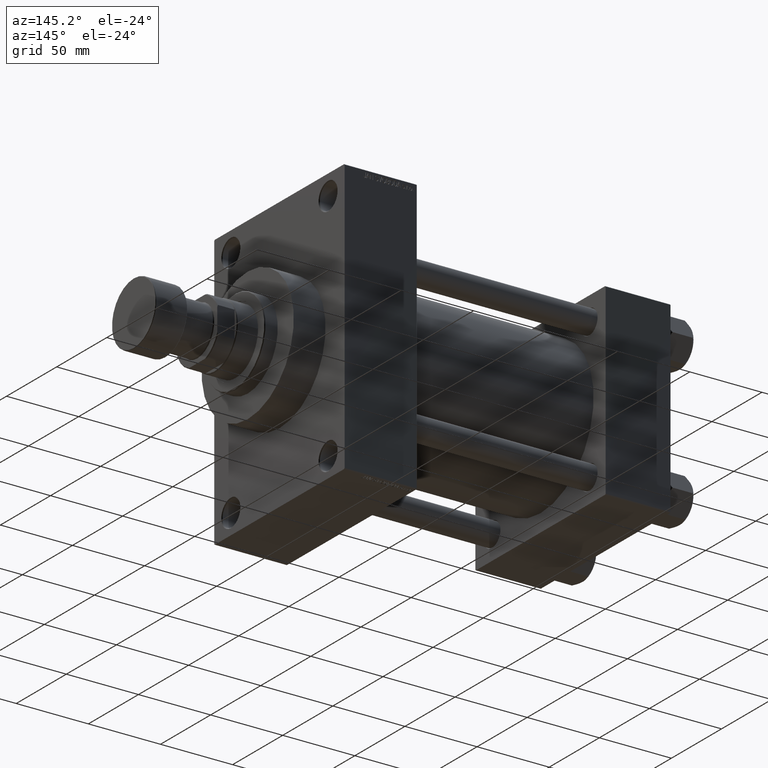
[diagram: clean part render]
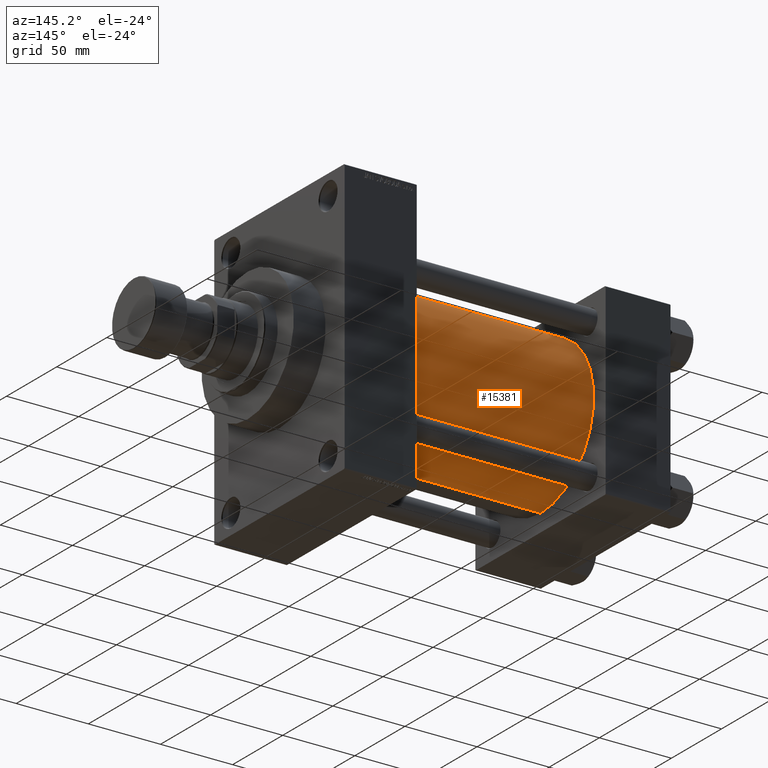
[diagram: same view with one face highlighted and labeled with its STEP entity id]
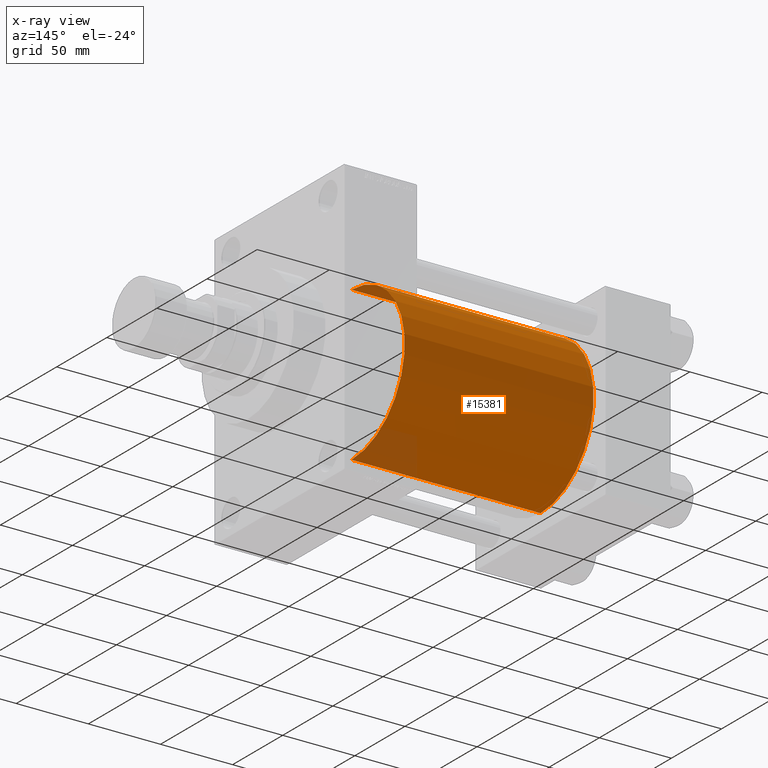
[diagram: x-ray of the same camera — body ghosted, the highlighted face saturated]
A machine part, auxiliary view. The second image highlights one B-rep face of the part: STEP entity #15381.
The next image is the same camera in x-ray: the body ghosted, the highlighted face saturated — about 7% of this face is hidden behind the body in this view.
In plain terms, the highlighted cylindrical surface (partial cylindrical patch) has radius 53 mm, axis along (-1, -0, -0).
Its self-contained STEP definition (entity closure, byte-faithful):
#1446 = DIRECTION ( 'NONE',  ( 0.000000000000000000, 0.000000000000000000, 1.000000000000000000 ) ) ;
#6537 = AXIS2_PLACEMENT_3D ( 'NONE', #23595, #38418, #1446 ) ;
#6697 = LINE ( 'NONE', #21542, #8327 ) ;
#7968 = DIRECTION ( 'NONE',  ( 1.000000000000000000, 0.000000000000000000, 0.000000000000000000 ) ) ;
#8327 = VECTOR ( 'NONE', #36373, 1000.000000000000000 ) ;
#8743 = CYLINDRICAL_SURFACE ( 'NONE', #6537, 53.00000000000000711 ) ;
#9541 = CARTESIAN_POINT ( 'NONE',  ( 44.99999999999998579, -2.602085213965210642E-15, 53.00000000000000711 ) ) ;
#14257 = CARTESIAN_POINT ( 'NONE',  ( 176.0000000000000000, -2.602085213965210642E-15, 53.00000000000000711 ) ) ;
#15381 = ADVANCED_FACE ( 'NONE', ( #43023 ), #8743, .T. ) ;
#15496 = CARTESIAN_POINT ( 'NONE',  ( 176.0000000000000000, -2.602085213965210642E-15, 0.000000000000000000 ) ) ;
#16180 = VECTOR ( 'NONE', #18384, 1000.000000000000000 ) ;
#17437 = ORIENTED_EDGE ( 'NONE', *, *, #22147, .T. ) ;
#18384 = DIRECTION ( 'NONE',  ( -1.000000000000000000, -0.000000000000000000, -0.000000000000000000 ) ) ;
#18782 = CARTESIAN_POINT ( 'NONE',  ( 176.0000000000000000, -2.602085213965210642E-15, 53.00000000000000711 ) ) ;
#20070 = DIRECTION ( 'NONE',  ( 0.000000000000000000, 0.000000000000000000, 1.000000000000000000 ) ) ;
#21542 = CARTESIAN_POINT ( 'NONE',  ( 176.0000000000000000, 3.888542821515762466E-15, -53.00000000000000711 ) ) ;
#22147 = EDGE_CURVE ( 'NONE', #31173, #36590, #6697, .T. ) ;
#23595 = CARTESIAN_POINT ( 'NONE',  ( 176.0000000000000000, -2.602085213965210642E-15, 0.000000000000000000 ) ) ;
#28168 = EDGE_LOOP ( 'NONE', ( #41800, #17437, #30363, #29399 ) ) ;
#29399 = ORIENTED_EDGE ( 'NONE', *, *, #42293, .F. ) ;
#30029 = EDGE_CURVE ( 'NONE', #31173, #39604, #39536, .T. ) ;
#30363 = ORIENTED_EDGE ( 'NONE', *, *, #33306, .T. ) ;
#31173 = VERTEX_POINT ( 'NONE', #33290 ) ;
#31492 = CARTESIAN_POINT ( 'NONE',  ( 44.99999999999998579, -2.602085213965210642E-15, 0.000000000000000000 ) ) ;
#31884 = CIRCLE ( 'NONE', #35018, 53.00000000000000711 ) ;
#32513 = LINE ( 'NONE', #14257, #16180 ) ;
#33290 = CARTESIAN_POINT ( 'NONE',  ( 176.0000000000000000, 3.888542821515762466E-15, -53.00000000000000711 ) ) ;
#33306 = EDGE_CURVE ( 'NONE', #36590, #34762, #31884, .T. ) ;
#34762 = VERTEX_POINT ( 'NONE', #9541 ) ;
#34904 = DIRECTION ( 'NONE',  ( 1.000000000000000000, -0.000000000000000000, 0.000000000000000000 ) ) ;
#35018 = AXIS2_PLACEMENT_3D ( 'NONE', #31492, #34904, #20070 ) ;
#36373 = DIRECTION ( 'NONE',  ( -1.000000000000000000, -0.000000000000000000, -0.000000000000000000 ) ) ;
#36590 = VERTEX_POINT ( 'NONE', #39297 ) ;
#37410 = DIRECTION ( 'NONE',  ( 0.000000000000000000, 0.000000000000000000, -1.000000000000000000 ) ) ;
#38418 = DIRECTION ( 'NONE',  ( -1.000000000000000000, -0.000000000000000000, -0.000000000000000000 ) ) ;
#39297 = CARTESIAN_POINT ( 'NONE',  ( 44.99999999999998579, 3.888542821515762466E-15, -53.00000000000000711 ) ) ;
#39536 = CIRCLE ( 'NONE', #40304, 53.00000000000000711 ) ;
#39604 = VERTEX_POINT ( 'NONE', #18782 ) ;
#40304 = AXIS2_PLACEMENT_3D ( 'NONE', #15496, #7968, #37410 ) ;
#41800 = ORIENTED_EDGE ( 'NONE', *, *, #30029, .F. ) ;
#42293 = EDGE_CURVE ( 'NONE', #39604, #34762, #32513, .T. ) ;
#43023 = FACE_OUTER_BOUND ( 'NONE', #28168, .T. ) ;